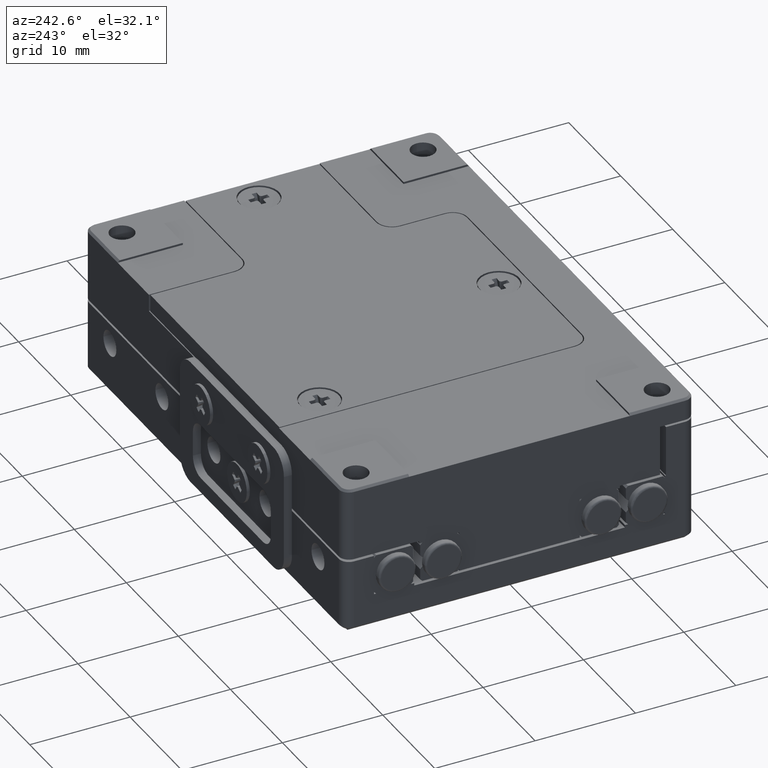
[diagram: clean part render]
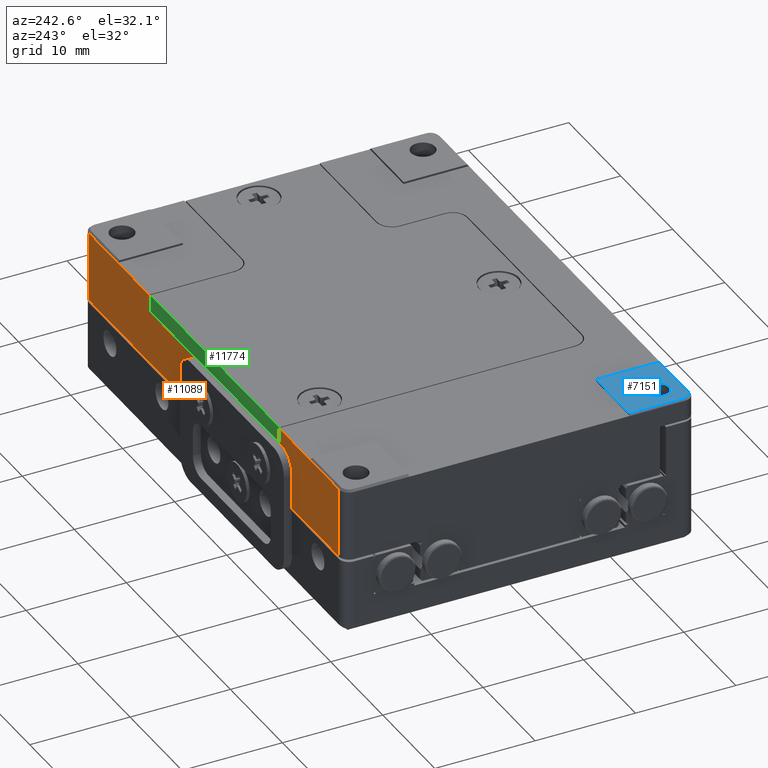
[diagram: same view with three faces highlighted in distinct colors, each labeled with its STEP entity id]
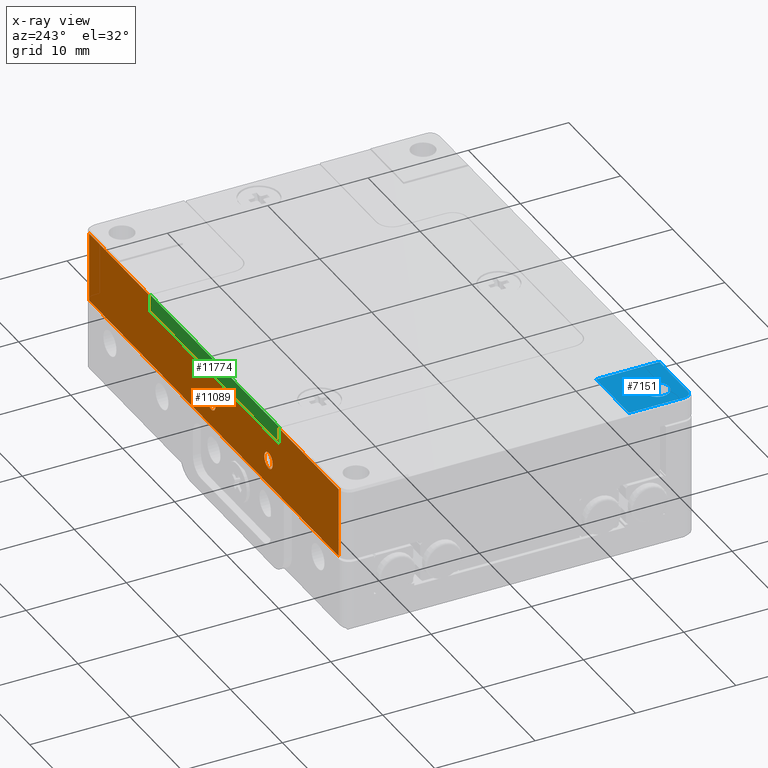
[diagram: x-ray of the same camera — body ghosted, the three highlighted faces saturated]
A machine part, auxiliary view with three faces highlighted in distinct colors.
The next image is the same camera in x-ray (body ghosted, the three faces saturated) — at least one of them is partly hidden behind the body in this view.
Their STEP definitions:

[orange] entity #11089 — the highlighted planar face has unit normal (0, -1, 0).
#7 = CARTESIAN_POINT ( 'NONE',  ( 27.63157894736844966, 12.95546558704454121, 11.25000000000000000 ) ) ;
#119 = CIRCLE ( 'NONE', #12158, 0.7999999999999899414 ) ;
#215 = EDGE_LOOP ( 'NONE', ( #1110, #11024 ) ) ;
#253 = ORIENTED_EDGE ( 'NONE', *, *, #10778, .T. ) ;
#285 = CARTESIAN_POINT ( 'NONE',  ( -9.868421052631569879, 12.95546558704454121, 9.549999999999998934 ) ) ;
#324 = VERTEX_POINT ( 'NONE', #3915 ) ;
#540 = VERTEX_POINT ( 'NONE', #1010 ) ;
#582 = CARTESIAN_POINT ( 'NONE',  ( 15.13157894736844966, 12.95546558704454121, 9.549999999999998934 ) ) ;
#648 = DIRECTION ( 'NONE',  ( 0.000000000000000000, 0.000000000000000000, 1.000000000000000000 ) ) ;
#698 = CARTESIAN_POINT ( 'NONE',  ( 26.63157894736844966, 12.95546558704454121, 11.25000000000000000 ) ) ;
#765 = VERTEX_POINT ( 'NONE', #12067 ) ;
#1002 = CARTESIAN_POINT ( 'NONE',  ( -7.868421052631569879, 12.95546558704454121, 6.750000000000000000 ) ) ;
#1010 = CARTESIAN_POINT ( 'NONE',  ( -21.36842105263155034, 12.95546558704454121, 4.250000000000000000 ) ) ;
#1110 = ORIENTED_EDGE ( 'NONE', *, *, #7517, .F. ) ;
#1168 = AXIS2_PLACEMENT_3D ( 'NONE', #3356, #2318, #6538 ) ;
#1217 = FACE_BOUND ( 'NONE', #215, .T. ) ;
#1264 = VERTEX_POINT ( 'NONE', #12454 ) ;
#1418 = EDGE_CURVE ( 'NONE', #10540, #1264, #3889, .T. ) ;
#1496 = ORIENTED_EDGE ( 'NONE', *, *, #6744, .F. ) ;
#1501 = AXIS2_PLACEMENT_3D ( 'NONE', #11727, #3242, #7451 ) ;
#1554 = CARTESIAN_POINT ( 'NONE',  ( -9.868421052631569879, 12.95546558704454121, 11.25000000000000000 ) ) ;
#1673 = ORIENTED_EDGE ( 'NONE', *, *, #1815, .F. ) ;
#1780 = VECTOR ( 'NONE', #2778, 1000.000000000000000 ) ;
#1815 = EDGE_CURVE ( 'NONE', #765, #8793, #9302, .T. ) ;
#2101 = LINE ( 'NONE', #10573, #12287 ) ;
#2122 = CARTESIAN_POINT ( 'NONE',  ( 27.63157894736844966, 12.95546558704454121, 11.25000000000000000 ) ) ;
#2272 = EDGE_CURVE ( 'NONE', #10875, #6642, #119, .T. ) ;
#2318 = DIRECTION ( 'NONE',  ( 0.000000000000000000, 1.000000000000000000, 0.000000000000000000 ) ) ;
#2379 = DIRECTION ( 'NONE',  ( 0.000000000000000000, 0.000000000000000000, 1.000000000000000000 ) ) ;
#2398 = DIRECTION ( 'NONE',  ( 0.000000000000000000, -1.000000000000000000, 0.000000000000000000 ) ) ;
#2562 = ORIENTED_EDGE ( 'NONE', *, *, #13461, .T. ) ;
#2751 = VERTEX_POINT ( 'NONE', #11064 ) ;
#2778 = DIRECTION ( 'NONE',  ( -1.000000000000000000, 0.000000000000000000, 0.000000000000000000 ) ) ;
#2862 = DIRECTION ( 'NONE',  ( 1.000000000000000000, 0.000000000000000000, 0.000000000000000000 ) ) ;
#2896 = DIRECTION ( 'NONE',  ( 0.000000000000000000, 0.000000000000000000, 1.000000000000000000 ) ) ;
#2944 = DIRECTION ( 'NONE',  ( -1.000000000000000000, 0.000000000000000000, 0.000000000000000000 ) ) ;
#3047 = ORIENTED_EDGE ( 'NONE', *, *, #12551, .F. ) ;
#3056 = ORIENTED_EDGE ( 'NONE', *, *, #13360, .T. ) ;
#3061 = ORIENTED_EDGE ( 'NONE', *, *, #11876, .T. ) ;
#3242 = DIRECTION ( 'NONE',  ( 0.000000000000000000, 1.000000000000000000, 0.000000000000000000 ) ) ;
#3275 = CIRCLE ( 'NONE', #1501, 0.7999999999999899414 ) ;
#3356 = CARTESIAN_POINT ( 'NONE',  ( 3.131578947368430121, 12.95546558704454121, 6.750000000000000000 ) ) ;
#3371 = FACE_OUTER_BOUND ( 'NONE', #12415, .T. ) ;
#3500 = ORIENTED_EDGE ( 'NONE', *, *, #7164, .F. ) ;
#3591 = CARTESIAN_POINT ( 'NONE',  ( -7.868421052631569879, 12.95546558704454121, 5.950000000000000178 ) ) ;
#3633 = EDGE_LOOP ( 'NONE', ( #1496, #10398 ) ) ;
#3836 = VECTOR ( 'NONE', #2944, 1000.000000000000000 ) ;
#3889 = LINE ( 'NONE', #6244, #12295 ) ;
#3915 = CARTESIAN_POINT ( 'NONE',  ( 21.13157894736844966, 12.95546558704454121, 11.25000000000000000 ) ) ;
#4030 = VERTEX_POINT ( 'NONE', #5155 ) ;
#4332 = DIRECTION ( 'NONE',  ( 0.000000000000000000, 0.000000000000000000, -1.000000000000000000 ) ) ;
#4450 = LINE ( 'NONE', #285, #11487 ) ;
#4452 = CARTESIAN_POINT ( 'NONE',  ( 3.131578947368430121, 12.95546558704454121, 7.550000000000000711 ) ) ;
#4741 = LINE ( 'NONE', #6610, #10679 ) ;
#5059 = LINE ( 'NONE', #13554, #11030 ) ;
#5124 = DIRECTION ( 'NONE',  ( 1.000000000000000000, 0.000000000000000000, 0.000000000000000000 ) ) ;
#5128 = VECTOR ( 'NONE', #648, 1000.000000000000000 ) ;
#5152 = CIRCLE ( 'NONE', #1168, 0.7999999999999899414 ) ;
#5155 = CARTESIAN_POINT ( 'NONE',  ( 26.63157894736844966, 12.95546558704454121, 4.250000000000000000 ) ) ;
#5228 = DIRECTION ( 'NONE',  ( 0.000000000000000000, 0.000000000000000000, 1.000000000000000000 ) ) ;
#5670 = CARTESIAN_POINT ( 'NONE',  ( -21.36842105263155034, 12.95546558704454121, 11.25000000000000000 ) ) ;
#6195 = DIRECTION ( 'NONE',  ( -1.000000000000000000, 0.000000000000000000, 0.000000000000000000 ) ) ;
#6244 = CARTESIAN_POINT ( 'NONE',  ( 27.63157894736844966, 12.95546558704454121, 11.25000000000000000 ) ) ;
#6538 = DIRECTION ( 'NONE',  ( 0.000000000000000000, 0.000000000000000000, 1.000000000000000000 ) ) ;
#6610 = CARTESIAN_POINT ( 'NONE',  ( 26.63157894736844966, 12.95546558704454121, 11.25000000000000000 ) ) ;
#6642 = VERTEX_POINT ( 'NONE', #9270 ) ;
#6679 = VECTOR ( 'NONE', #11564, 1000.000000000000000 ) ;
#6744 = EDGE_CURVE ( 'NONE', #6642, #10875, #8272, .T. ) ;
#6771 = DIRECTION ( 'NONE',  ( 0.000000000000000000, 0.000000000000000000, 1.000000000000000000 ) ) ;
#6920 = VERTEX_POINT ( 'NONE', #1554 ) ;
#6952 = LINE ( 'NONE', #12815, #6679 ) ;
#6994 = CARTESIAN_POINT ( 'NONE',  ( 15.13157894736844966, 12.95546558704454121, 9.549999999999998934 ) ) ;
#7116 = EDGE_CURVE ( 'NONE', #6920, #1264, #2101, .T. ) ;
#7164 = EDGE_CURVE ( 'NONE', #324, #10246, #11701, .T. ) ;
#7250 = CARTESIAN_POINT ( 'NONE',  ( -7.868421052631569879, 12.95546558704454121, 6.750000000000000000 ) ) ;
#7379 = PLANE ( 'NONE',  #13237 ) ;
#7402 = VERTEX_POINT ( 'NONE', #698 ) ;
#7451 = DIRECTION ( 'NONE',  ( 0.000000000000000000, 0.000000000000000000, 1.000000000000000000 ) ) ;
#7517 = EDGE_CURVE ( 'NONE', #11290, #2751, #5152, .T. ) ;
#7522 = CARTESIAN_POINT ( 'NONE',  ( -9.868421052631569879, 12.95546558704454121, 9.549999999999998934 ) ) ;
#7685 = CARTESIAN_POINT ( 'NONE',  ( 15.13157894736844966, 12.95546558704454121, 11.25000000000000000 ) ) ;
#8272 = CIRCLE ( 'NONE', #10053, 0.7999999999999899414 ) ;
#8390 = CARTESIAN_POINT ( 'NONE',  ( -21.36842105263155034, 12.95546558704454121, 11.25000000000000000 ) ) ;
#8793 = VERTEX_POINT ( 'NONE', #7522 ) ;
#9270 = CARTESIAN_POINT ( 'NONE',  ( -7.868421052631569879, 12.95546558704454121, 7.550000000000000711 ) ) ;
#9302 = LINE ( 'NONE', #6994, #1780 ) ;
#9490 = FACE_BOUND ( 'NONE', #3633, .T. ) ;
#9601 = ORIENTED_EDGE ( 'NONE', *, *, #13537, .F. ) ;
#10053 = AXIS2_PLACEMENT_3D ( 'NONE', #1002, #11499, #5228 ) ;
#10106 = VECTOR ( 'NONE', #6771, 1000.000000000000000 ) ;
#10246 = VERTEX_POINT ( 'NONE', #7685 ) ;
#10398 = ORIENTED_EDGE ( 'NONE', *, *, #2272, .F. ) ;
#10540 = VERTEX_POINT ( 'NONE', #8390 ) ;
#10573 = CARTESIAN_POINT ( 'NONE',  ( 27.63157894736844966, 12.95546558704454121, 11.25000000000000000 ) ) ;
#10635 = ORIENTED_EDGE ( 'NONE', *, *, #1418, .T. ) ;
#10679 = VECTOR ( 'NONE', #10860, 1000.000000000000000 ) ;
#10740 = ORIENTED_EDGE ( 'NONE', *, *, #7116, .F. ) ;
#10778 = EDGE_CURVE ( 'NONE', #540, #10540, #13187, .T. ) ;
#10860 = DIRECTION ( 'NONE',  ( 0.000000000000000000, 0.000000000000000000, -1.000000000000000000 ) ) ;
#10875 = VERTEX_POINT ( 'NONE', #3591 ) ;
#11024 = ORIENTED_EDGE ( 'NONE', *, *, #12381, .F. ) ;
#11030 = VECTOR ( 'NONE', #5124, 1000.000000000000000 ) ;
#11064 = CARTESIAN_POINT ( 'NONE',  ( 3.131578947368430121, 12.95546558704454121, 5.950000000000000178 ) ) ;
#11089 = ADVANCED_FACE ( 'NONE', ( #3371, #9490, #1217 ), #7379, .F. ) ;
#11290 = VERTEX_POINT ( 'NONE', #4452 ) ;
#11487 = VECTOR ( 'NONE', #2379, 1000.000000000000000 ) ;
#11499 = DIRECTION ( 'NONE',  ( 0.000000000000000000, 1.000000000000000000, 0.000000000000000000 ) ) ;
#11564 = DIRECTION ( 'NONE',  ( 1.000000000000000000, 0.000000000000000000, 0.000000000000000000 ) ) ;
#11701 = LINE ( 'NONE', #7, #3836 ) ;
#11727 = CARTESIAN_POINT ( 'NONE',  ( 3.131578947368430121, 12.95546558704454121, 6.750000000000000000 ) ) ;
#11876 = EDGE_CURVE ( 'NONE', #324, #7402, #5059, .T. ) ;
#12067 = CARTESIAN_POINT ( 'NONE',  ( 15.13157894736844966, 12.95546558704454121, 9.549999999999998934 ) ) ;
#12158 = AXIS2_PLACEMENT_3D ( 'NONE', #7250, #12422, #2896 ) ;
#12287 = VECTOR ( 'NONE', #6195, 1000.000000000000000 ) ;
#12295 = VECTOR ( 'NONE', #2862, 1000.000000000000000 ) ;
#12381 = EDGE_CURVE ( 'NONE', #2751, #11290, #3275, .T. ) ;
#12415 = EDGE_LOOP ( 'NONE', ( #1673, #2562, #3500, #3061, #3056, #9601, #253, #10635, #10740, #3047 ) ) ;
#12422 = DIRECTION ( 'NONE',  ( 0.000000000000000000, 1.000000000000000000, 0.000000000000000000 ) ) ;
#12454 = CARTESIAN_POINT ( 'NONE',  ( -15.86842105263155212, 12.95546558704454121, 11.25000000000000000 ) ) ;
#12551 = EDGE_CURVE ( 'NONE', #8793, #6920, #4450, .T. ) ;
#12815 = CARTESIAN_POINT ( 'NONE',  ( -22.36842105263154679, 12.95546558704454121, 4.250000000000000000 ) ) ;
#13187 = LINE ( 'NONE', #5670, #10106 ) ;
#13237 = AXIS2_PLACEMENT_3D ( 'NONE', #2122, #2398, #4332 ) ;
#13360 = EDGE_CURVE ( 'NONE', #7402, #4030, #4741, .T. ) ;
#13461 = EDGE_CURVE ( 'NONE', #765, #10246, #13577, .T. ) ;
#13537 = EDGE_CURVE ( 'NONE', #540, #4030, #6952, .T. ) ;
#13554 = CARTESIAN_POINT ( 'NONE',  ( 27.63157894736844966, 12.95546558704454121, 11.25000000000000000 ) ) ;
#13577 = LINE ( 'NONE', #582, #5128 ) ;

[blue] entity #7151 — the highlighted planar face has unit normal (0, 0, -1).
#78 = ORIENTED_EDGE ( 'NONE', *, *, #12458, .T. ) ;
#323 = VERTEX_POINT ( 'NONE', #6906 ) ;
#560 = ORIENTED_EDGE ( 'NONE', *, *, #3503, .T. ) ;
#600 = VECTOR ( 'NONE', #5095, 1000.000000000000000 ) ;
#601 = ORIENTED_EDGE ( 'NONE', *, *, #12724, .T. ) ;
#909 = LINE ( 'NONE', #6109, #9847 ) ;
#1298 = EDGE_CURVE ( 'NONE', #12593, #1470, #909, .T. ) ;
#1470 = VERTEX_POINT ( 'NONE', #5408 ) ;
#1694 = CARTESIAN_POINT ( 'NONE',  ( -18.66842105263155460, -19.54453441295544991, 11.44999999999999929 ) ) ;
#2167 = DIRECTION ( 'NONE',  ( 0.000000000000000000, 0.000000000000000000, 1.000000000000000000 ) ) ;
#2599 = EDGE_LOOP ( 'NONE', ( #78, #4125, #12497, #560, #5314 ) ) ;
#2832 = VERTEX_POINT ( 'NONE', #6044 ) ;
#2924 = CARTESIAN_POINT ( 'NONE',  ( -19.86842105263155389, -19.54453441295544991, 11.44999999999999929 ) ) ;
#3284 = DIRECTION ( 'NONE',  ( -1.000000000000000000, 0.000000000000000000, 0.000000000000000000 ) ) ;
#3503 = EDGE_CURVE ( 'NONE', #6274, #12593, #11501, .T. ) ;
#3609 = DIRECTION ( 'NONE',  ( -1.000000000000000000, 0.000000000000000000, 0.000000000000000000 ) ) ;
#4125 = ORIENTED_EDGE ( 'NONE', *, *, #5958, .T. ) ;
#4854 = DIRECTION ( 'NONE',  ( -1.000000000000000000, 0.000000000000000000, 0.000000000000000000 ) ) ;
#5095 = DIRECTION ( 'NONE',  ( -1.000000000000000000, 0.000000000000000000, 0.000000000000000000 ) ) ;
#5111 = CARTESIAN_POINT ( 'NONE',  ( -15.86842105263155212, -15.54453441295544991, 11.44999999999999929 ) ) ;
#5314 = ORIENTED_EDGE ( 'NONE', *, *, #1298, .T. ) ;
#5408 = CARTESIAN_POINT ( 'NONE',  ( -22.16842105263154750, -21.04453441295544636, 11.44999999999999929 ) ) ;
#5481 = AXIS2_PLACEMENT_3D ( 'NONE', #13708, #2167, #3284 ) ;
#5488 = CARTESIAN_POINT ( 'NONE',  ( -15.86842105263155212, -15.54453441295544991, 11.44999999999999929 ) ) ;
#5764 = ORIENTED_EDGE ( 'NONE', *, *, #10306, .T. ) ;
#5833 = VERTEX_POINT ( 'NONE', #1694 ) ;
#5958 = EDGE_CURVE ( 'NONE', #2832, #323, #11490, .T. ) ;
#6044 = CARTESIAN_POINT ( 'NONE',  ( -21.36842105263155034, -21.84453441295550036, 11.44999999999999929 ) ) ;
#6109 = CARTESIAN_POINT ( 'NONE',  ( -22.16842105263154750, -4.394980620038685110E-15, 11.44999999999999929 ) ) ;
#6160 = AXIS2_PLACEMENT_3D ( 'NONE', #6790, #13137, #3609 ) ;
#6274 = VERTEX_POINT ( 'NONE', #5111 ) ;
#6319 = EDGE_LOOP ( 'NONE', ( #5764, #601 ) ) ;
#6389 = CARTESIAN_POINT ( 'NONE',  ( 0.000000000000000000, 0.000000000000000000, 11.44999999999999929 ) ) ;
#6666 = LINE ( 'NONE', #5488, #9477 ) ;
#6790 = CARTESIAN_POINT ( 'NONE',  ( -19.86842105263155389, -19.54453441295544991, 11.44999999999999929 ) ) ;
#6906 = CARTESIAN_POINT ( 'NONE',  ( -15.86842105263155212, -21.84453441295550036, 11.44999999999999929 ) ) ;
#6973 = VECTOR ( 'NONE', #10299, 1000.000000000000000 ) ;
#7028 = AXIS2_PLACEMENT_3D ( 'NONE', #2924, #13282, #4854 ) ;
#7151 = ADVANCED_FACE ( 'NONE', ( #8279, #7292 ), #12738, .F. ) ;
#7231 = CARTESIAN_POINT ( 'NONE',  ( 0.000000000000000000, -21.84453441295550036, 11.44999999999999929 ) ) ;
#7292 = FACE_BOUND ( 'NONE', #6319, .T. ) ;
#7354 = CARTESIAN_POINT ( 'NONE',  ( -21.06842105263155318, -19.54453441295544991, 11.44999999999999929 ) ) ;
#8209 = DIRECTION ( 'NONE',  ( 0.000000000000000000, 0.000000000000000000, -1.000000000000000000 ) ) ;
#8279 = FACE_OUTER_BOUND ( 'NONE', #2599, .T. ) ;
#8906 = CARTESIAN_POINT ( 'NONE',  ( -22.16842105263154750, -15.54453441295544991, 11.44999999999999929 ) ) ;
#9477 = VECTOR ( 'NONE', #10844, 1000.000000000000000 ) ;
#9847 = VECTOR ( 'NONE', #10496, 1000.000000000000000 ) ;
#10299 = DIRECTION ( 'NONE',  ( 1.000000000000000000, 0.000000000000000000, 0.000000000000000000 ) ) ;
#10306 = EDGE_CURVE ( 'NONE', #11453, #5833, #12608, .T. ) ;
#10438 = DIRECTION ( 'NONE',  ( 0.000000000000000000, -1.000000000000000000, 0.000000000000000000 ) ) ;
#10496 = DIRECTION ( 'NONE',  ( 1.982541115402064617E-16, -1.000000000000000000, 0.000000000000000000 ) ) ;
#10844 = DIRECTION ( 'NONE',  ( 0.000000000000000000, 1.000000000000000000, 0.000000000000000000 ) ) ;
#11397 = AXIS2_PLACEMENT_3D ( 'NONE', #6389, #8209, #10438 ) ;
#11453 = VERTEX_POINT ( 'NONE', #7354 ) ;
#11490 = LINE ( 'NONE', #7231, #6973 ) ;
#11501 = LINE ( 'NONE', #11643, #600 ) ;
#11643 = CARTESIAN_POINT ( 'NONE',  ( -22.36842105263154679, -15.54453441295544991, 11.44999999999999929 ) ) ;
#11930 = CIRCLE ( 'NONE', #5481, 0.8000000000000090372 ) ;
#12458 = EDGE_CURVE ( 'NONE', #1470, #2832, #11930, .T. ) ;
#12497 = ORIENTED_EDGE ( 'NONE', *, *, #12688, .T. ) ;
#12593 = VERTEX_POINT ( 'NONE', #8906 ) ;
#12608 = CIRCLE ( 'NONE', #6160, 1.199999999999999734 ) ;
#12688 = EDGE_CURVE ( 'NONE', #323, #6274, #6666, .T. ) ;
#12724 = EDGE_CURVE ( 'NONE', #5833, #11453, #13050, .T. ) ;
#12738 = PLANE ( 'NONE',  #11397 ) ;
#13050 = CIRCLE ( 'NONE', #7028, 1.199999999999999734 ) ;
#13137 = DIRECTION ( 'NONE',  ( 0.000000000000000000, 0.000000000000000000, -1.000000000000000000 ) ) ;
#13282 = DIRECTION ( 'NONE',  ( 0.000000000000000000, 0.000000000000000000, -1.000000000000000000 ) ) ;
#13708 = CARTESIAN_POINT ( 'NONE',  ( -21.36842105263155034, -21.04453441295544636, 11.44999999999999929 ) ) ;

[green] entity #11774 — the highlighted planar face has unit normal (0, -1, 0).
#11 = LINE ( 'NONE', #8495, #4084 ) ;
#651 = ORIENTED_EDGE ( 'NONE', *, *, #1134, .F. ) ;
#717 = EDGE_CURVE ( 'NONE', #5933, #12462, #4876, .T. ) ;
#964 = ORIENTED_EDGE ( 'NONE', *, *, #717, .T. ) ;
#1134 = EDGE_CURVE ( 'NONE', #3949, #5263, #11, .T. ) ;
#1277 = VECTOR ( 'NONE', #6958, 1000.000000000000000 ) ;
#1336 = VECTOR ( 'NONE', #3566, 1000.000000000000000 ) ;
#1573 = ORIENTED_EDGE ( 'NONE', *, *, #3477, .F. ) ;
#2141 = FACE_OUTER_BOUND ( 'NONE', #6174, .T. ) ;
#2209 = CARTESIAN_POINT ( 'NONE',  ( -13.67656765676570174, 16.48844884488449836, 0.000000000000000000 ) ) ;
#2947 = CARTESIAN_POINT ( 'NONE',  ( 11.12343234323429897, 16.48844884488449836, 1.699999999999999956 ) ) ;
#3096 = LINE ( 'NONE', #13725, #8576 ) ;
#3423 = CARTESIAN_POINT ( 'NONE',  ( 11.12343234323429897, 16.48844884488449836, 0.000000000000000000 ) ) ;
#3477 = EDGE_CURVE ( 'NONE', #5933, #3949, #3096, .T. ) ;
#3566 = DIRECTION ( 'NONE',  ( -1.000000000000000000, -1.398970545142586048E-16, 0.000000000000000000 ) ) ;
#3949 = VERTEX_POINT ( 'NONE', #11346 ) ;
#4084 = VECTOR ( 'NONE', #12742, 1000.000000000000000 ) ;
#4287 = CARTESIAN_POINT ( 'NONE',  ( 11.12343234323429897, 16.48844884488449836, 1.699999999999999956 ) ) ;
#4876 = LINE ( 'NONE', #13173, #1277 ) ;
#5263 = VERTEX_POINT ( 'NONE', #2209 ) ;
#5933 = VERTEX_POINT ( 'NONE', #2947 ) ;
#6172 = DIRECTION ( 'NONE',  ( 1.398970545142586048E-16, -1.000000000000000000, 0.000000000000000000 ) ) ;
#6174 = EDGE_LOOP ( 'NONE', ( #10901, #651, #1573, #964 ) ) ;
#6539 = LINE ( 'NONE', #3423, #1336 ) ;
#6958 = DIRECTION ( 'NONE',  ( 0.000000000000000000, 0.000000000000000000, -1.000000000000000000 ) ) ;
#7271 = DIRECTION ( 'NONE',  ( 0.000000000000000000, 0.000000000000000000, -1.000000000000000000 ) ) ;
#8495 = CARTESIAN_POINT ( 'NONE',  ( -13.67656765676570174, 16.48844884488449836, 1.699999999999999956 ) ) ;
#8576 = VECTOR ( 'NONE', #12616, 1000.000000000000000 ) ;
#9135 = PLANE ( 'NONE',  #13018 ) ;
#9338 = EDGE_CURVE ( 'NONE', #12462, #5263, #6539, .T. ) ;
#10509 = CARTESIAN_POINT ( 'NONE',  ( 11.12343234323429897, 16.48844884488449836, 0.000000000000000000 ) ) ;
#10901 = ORIENTED_EDGE ( 'NONE', *, *, #9338, .T. ) ;
#11346 = CARTESIAN_POINT ( 'NONE',  ( -13.67656765676570174, 16.48844884488449836, 1.699999999999999956 ) ) ;
#11774 = ADVANCED_FACE ( 'NONE', ( #2141 ), #9135, .F. ) ;
#12462 = VERTEX_POINT ( 'NONE', #10509 ) ;
#12616 = DIRECTION ( 'NONE',  ( -1.000000000000000000, -1.398970545142586048E-16, 0.000000000000000000 ) ) ;
#12742 = DIRECTION ( 'NONE',  ( 0.000000000000000000, 0.000000000000000000, -1.000000000000000000 ) ) ;
#13018 = AXIS2_PLACEMENT_3D ( 'NONE', #4287, #6172, #7271 ) ;
#13173 = CARTESIAN_POINT ( 'NONE',  ( 11.12343234323429897, 16.48844884488449836, 1.699999999999999956 ) ) ;
#13725 = CARTESIAN_POINT ( 'NONE',  ( 11.12343234323429897, 16.48844884488449836, 1.699999999999999956 ) ) ;